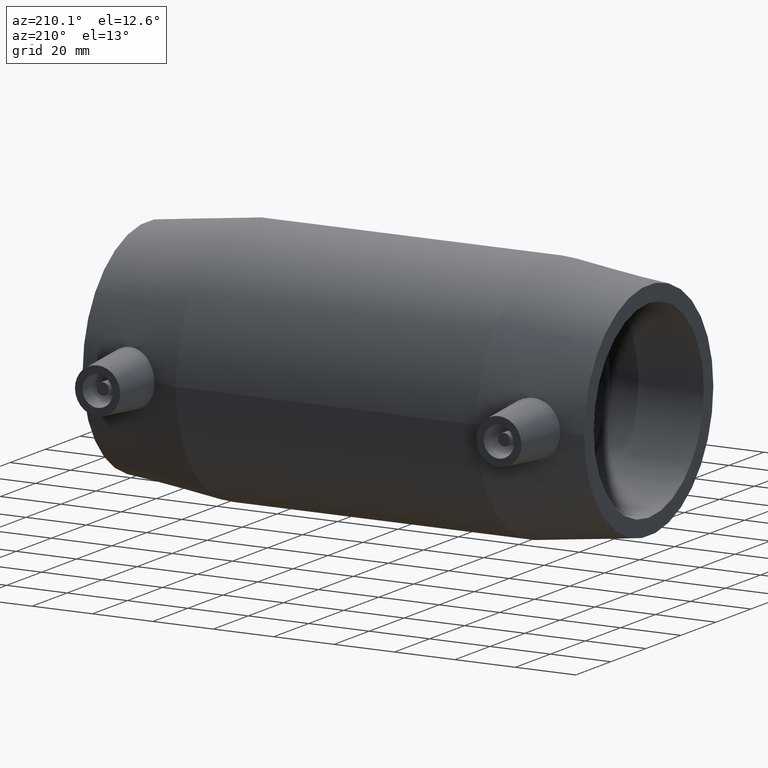
[diagram: clean part render]
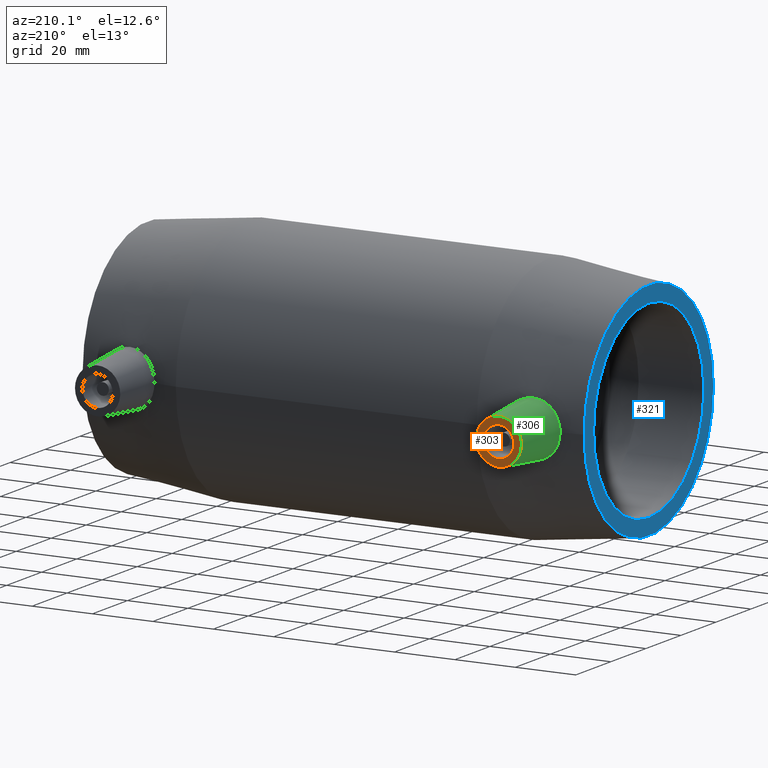
[diagram: same view with three faces highlighted in distinct colors, each labeled with its STEP entity id]
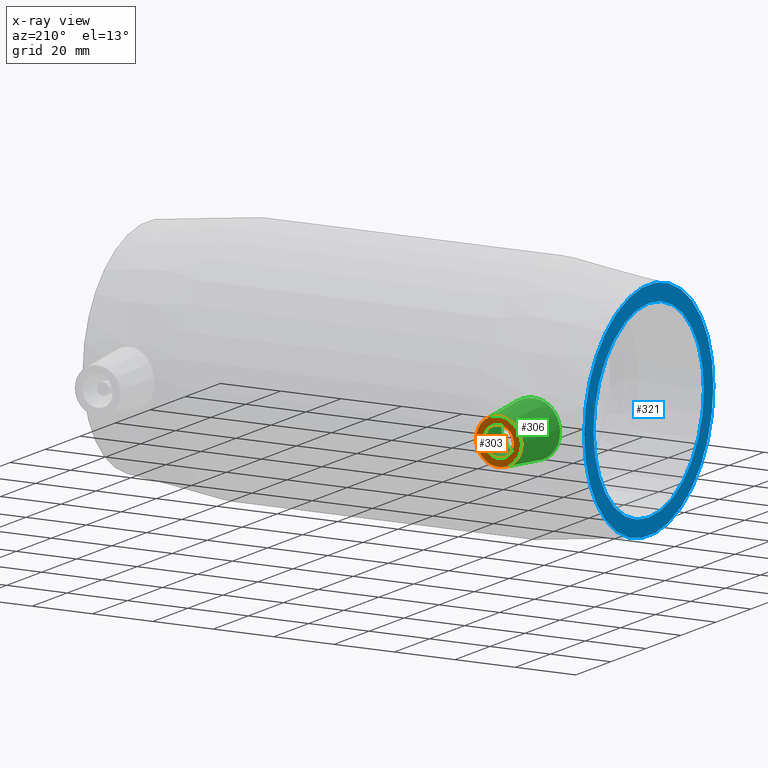
[diagram: x-ray of the same camera — body ghosted, the three highlighted faces saturated]
A machine part, auxiliary view with three faces highlighted in distinct colors.
The next image is the same camera in x-ray (body ghosted, the three faces saturated) — at least one of them is partly hidden behind the body in this view.
Their STEP definitions:

[orange] entity #303 — the highlighted planar face has unit normal (0, 1, 0).
#29=FACE_BOUND('',#104,.T.);
#69=FACE_OUTER_BOUND('',#103,.T.);
#103=EDGE_LOOP('',(#241));
#104=EDGE_LOOP('',(#242));
#152=CIRCLE('',#339,5.);
#153=CIRCLE('',#342,7.5);
#178=VERTEX_POINT('',#511);
#179=VERTEX_POINT('',#515);
#206=EDGE_CURVE('',#178,#178,#152,.T.);
#207=EDGE_CURVE('',#179,#179,#153,.T.);
#241=ORIENTED_EDGE('',*,*,#207,.F.);
#242=ORIENTED_EDGE('',*,*,#206,.T.);
#287=PLANE('',#341);
#303=ADVANCED_FACE('',(#69,#29),#287,.T.);
#339=AXIS2_PLACEMENT_3D('',#512,#409,#410);
#341=AXIS2_PLACEMENT_3D('',#514,#413,#414);
#342=AXIS2_PLACEMENT_3D('',#516,#415,#416);
#409=DIRECTION('center_axis',(0.,-1.,0.));
#410=DIRECTION('ref_axis',(-1.,0.,0.));
#413=DIRECTION('center_axis',(0.,1.,0.));
#414=DIRECTION('ref_axis',(0.,0.,1.));
#415=DIRECTION('center_axis',(0.,-1.,0.));
#416=DIRECTION('ref_axis',(1.,0.,0.));
#511=CARTESIAN_POINT('',(-61.4,57.,-6.12323399573677E-16));
#512=CARTESIAN_POINT('Origin',(-66.4,57.,0.));
#514=CARTESIAN_POINT('Origin',(-66.4,57.,1.2335811384724E-16));
#515=CARTESIAN_POINT('',(-73.9,57.,9.18485099360515E-16));
#516=CARTESIAN_POINT('Origin',(-66.4,57.,0.));

[blue] entity #321 — the highlighted planar face has unit normal (-1, 0, 0).
#48=FACE_BOUND('',#141,.T.);
#87=FACE_OUTER_BOUND('',#140,.T.);
#140=EDGE_LOOP('',(#278));
#141=EDGE_LOOP('',(#279));
#169=CIRCLE('',#375,31.5);
#170=CIRCLE('',#377,36.9);
#197=VERTEX_POINT('',#634);
#198=VERTEX_POINT('',#637);
#225=EDGE_CURVE('',#197,#197,#169,.T.);
#226=EDGE_CURVE('',#198,#198,#170,.T.);
#278=ORIENTED_EDGE('',*,*,#226,.F.);
#279=ORIENTED_EDGE('',*,*,#225,.T.);
#294=PLANE('',#376);
#321=ADVANCED_FACE('',(#87,#48),#294,.T.);
#375=AXIS2_PLACEMENT_3D('',#635,#481,#482);
#376=AXIS2_PLACEMENT_3D('',#636,#483,#484);
#377=AXIS2_PLACEMENT_3D('',#638,#485,#486);
#481=DIRECTION('center_axis',(1.,0.,0.));
#482=DIRECTION('ref_axis',(0.,0.,-1.));
#483=DIRECTION('center_axis',(-1.,0.,0.));
#484=DIRECTION('ref_axis',(0.,0.,1.));
#485=DIRECTION('center_axis',(1.,0.,0.));
#486=DIRECTION('ref_axis',(0.,0.,-1.));
#634=CARTESIAN_POINT('',(-83.,31.5,0.));
#635=CARTESIAN_POINT('Origin',(-83.,0.,0.));
#636=CARTESIAN_POINT('Origin',(-83.,36.9,0.));
#637=CARTESIAN_POINT('',(-83.,36.9,0.));
#638=CARTESIAN_POINT('Origin',(-83.,0.,0.));

[green] entity #306 — the highlighted conical surface has half-angle 5 deg.
#16=B_SPLINE_CURVE_WITH_KNOTS('',3,(#558,#559,#560,#561,#562,#563,#564,
#565,#566,#567,#568,#569,#570,#571,#572,#573,#574,#575,#576,#577,#578,#579,
#580,#581,#582,#583,#584,#585,#586,#587,#588,#589,#590,#591),
 .UNSPECIFIED.,.T.,.F.,(4,2,2,2,2,2,2,2,2,2,2,2,2,2,2,2,4),(0.,0.336734742558964,
0.673469485117929,1.01220456398934,1.35093964286074,1.68967472173215,2.02840980060356,
2.36514454316252,2.70187928572149,3.06106266568126,3.42024604564103,3.77184325110227,
4.12344045656351,4.47503766202475,4.82663486748599,5.18581824744576,5.54500162740553),
 .UNSPECIFIED.);
#18=CONICAL_SURFACE('',#346,7.5,5.);
#32=FACE_BOUND('',#110,.T.);
#72=FACE_OUTER_BOUND('',#109,.T.);
#109=EDGE_LOOP('',(#247));
#110=EDGE_LOOP('',(#248));
#153=CIRCLE('',#342,7.5);
#179=VERTEX_POINT('',#515);
#182=VERTEX_POINT('',#557);
#207=EDGE_CURVE('',#179,#179,#153,.T.);
#210=EDGE_CURVE('',#182,#182,#16,.T.);
#247=ORIENTED_EDGE('',*,*,#207,.T.);
#248=ORIENTED_EDGE('',*,*,#210,.F.);
#306=ADVANCED_FACE('',(#72,#32),#18,.T.);
#342=AXIS2_PLACEMENT_3D('',#516,#415,#416);
#346=AXIS2_PLACEMENT_3D('',#556,#423,#424);
#415=DIRECTION('center_axis',(0.,-1.,0.));
#416=DIRECTION('ref_axis',(1.,0.,0.));
#423=DIRECTION('center_axis',(0.,-1.,0.));
#424=DIRECTION('ref_axis',(1.,0.,0.));
#515=CARTESIAN_POINT('',(-73.9,57.,9.18485099360515E-16));
#516=CARTESIAN_POINT('Origin',(-66.4,57.,0.));
#556=CARTESIAN_POINT('Origin',(-66.4,57.,0.));
#557=CARTESIAN_POINT('',(-66.763402878188,37.8085425731663,9.17183848366914));
#558=CARTESIAN_POINT('Ctrl Pts',(-66.763402878188,37.8085425731663,9.17183848366914));
#559=CARTESIAN_POINT('Ctrl Pts',(-67.877389589445,37.6748494899395,9.13940635901458));
#560=CARTESIAN_POINT('Ctrl Pts',(-69.0646971546038,37.5881036335941,8.88408241454367));
#561=CARTESIAN_POINT('Ctrl Pts',(-71.2415851277126,37.5288912755185,7.91719089171717));
#562=CARTESIAN_POINT('Ctrl Pts',(-72.2311002249757,37.5532826727481,7.20567124738785));
#563=CARTESIAN_POINT('Ctrl Pts',(-73.7910280342044,37.6338238910355,5.58403993411496));
#564=CARTESIAN_POINT('Ctrl Pts',(-74.4659713894068,37.695105734845,4.56257068910721));
#565=CARTESIAN_POINT('Ctrl Pts',(-75.359627475163,37.7878280881744,2.33516657722028));
#566=CARTESIAN_POINT('Ctrl Pts',(-75.5783360834217,37.8165307848787,1.12911692957136));
#567=CARTESIAN_POINT('Ctrl Pts',(-75.5783360834217,37.8165307848787,-1.12911692957136));
#568=CARTESIAN_POINT('Ctrl Pts',(-75.359627475163,37.7878280881744,-2.33516657722028));
#569=CARTESIAN_POINT('Ctrl Pts',(-74.4659713894068,37.695105734845,-4.56257068910721));
#570=CARTESIAN_POINT('Ctrl Pts',(-73.7910280342044,37.6338238910355,-5.58403993411496));
#571=CARTESIAN_POINT('Ctrl Pts',(-72.2311002249757,37.5532826727481,-7.20567124738785));
#572=CARTESIAN_POINT('Ctrl Pts',(-71.2415851277126,37.5288912755185,-7.91719089171717));
#573=CARTESIAN_POINT('Ctrl Pts',(-69.0646971546038,37.5881036335941,-8.88408241454367));
#574=CARTESIAN_POINT('Ctrl Pts',(-67.877389589445,37.6748494899395,-9.13940635901458));
#575=CARTESIAN_POINT('Ctrl Pts',(-65.5751515289543,37.9511483914604,-9.20643271669712));
#576=CARTESIAN_POINT('Ctrl Pts',(-64.3150082902099,38.1654151793234,-8.9934917641387));
#577=CARTESIAN_POINT('Ctrl Pts',(-62.0045065469998,38.6629321751074,-8.06940368649546));
#578=CARTESIAN_POINT('Ctrl Pts',(-60.9532384629573,38.9427362066267,-7.35867889596439));
#579=CARTESIAN_POINT('Ctrl Pts',(-59.3096091583389,39.4215057083059,-5.72078504780668));
#580=CARTESIAN_POINT('Ctrl Pts',(-58.5999936205124,39.6533585703021,-4.68978717553829));
#581=CARTESIAN_POINT('Ctrl Pts',(-57.6539025683989,39.9735883942816,-2.41567482495753));
#582=CARTESIAN_POINT('Ctrl Pts',(-57.4178753979335,40.0592382791709,-1.1719906848708));
#583=CARTESIAN_POINT('Ctrl Pts',(-57.4178753979335,40.0592382791709,1.17199068487079));
#584=CARTESIAN_POINT('Ctrl Pts',(-57.6539025683989,39.9735883942816,2.41567482495753));
#585=CARTESIAN_POINT('Ctrl Pts',(-58.5999936205124,39.6533585703021,4.6897871755383));
#586=CARTESIAN_POINT('Ctrl Pts',(-59.3096091583389,39.4215057083059,5.72078504780668));
#587=CARTESIAN_POINT('Ctrl Pts',(-60.9532384629573,38.9427362066267,7.35867889596439));
#588=CARTESIAN_POINT('Ctrl Pts',(-62.0045065469998,38.6629321751075,8.06940368649546));
#589=CARTESIAN_POINT('Ctrl Pts',(-64.3150082902099,38.1654151793234,8.9934917641387));
#590=CARTESIAN_POINT('Ctrl Pts',(-65.5751515289543,37.9511483914604,9.20643271669712));
#591=CARTESIAN_POINT('Ctrl Pts',(-66.763402878188,37.8085425731663,9.17183848366914));